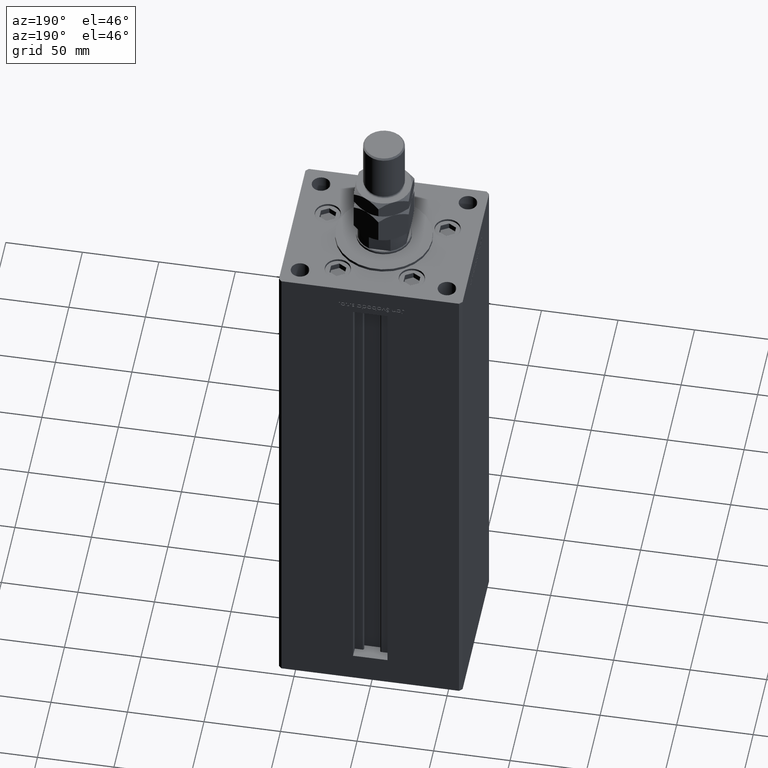
[diagram: clean part render]
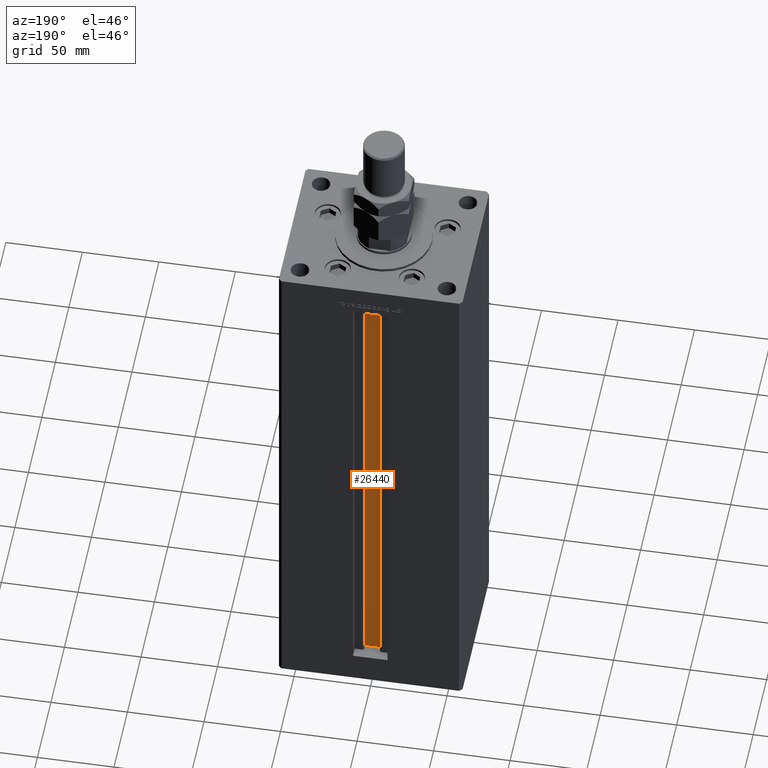
[diagram: same view with one face highlighted and labeled with its STEP entity id]
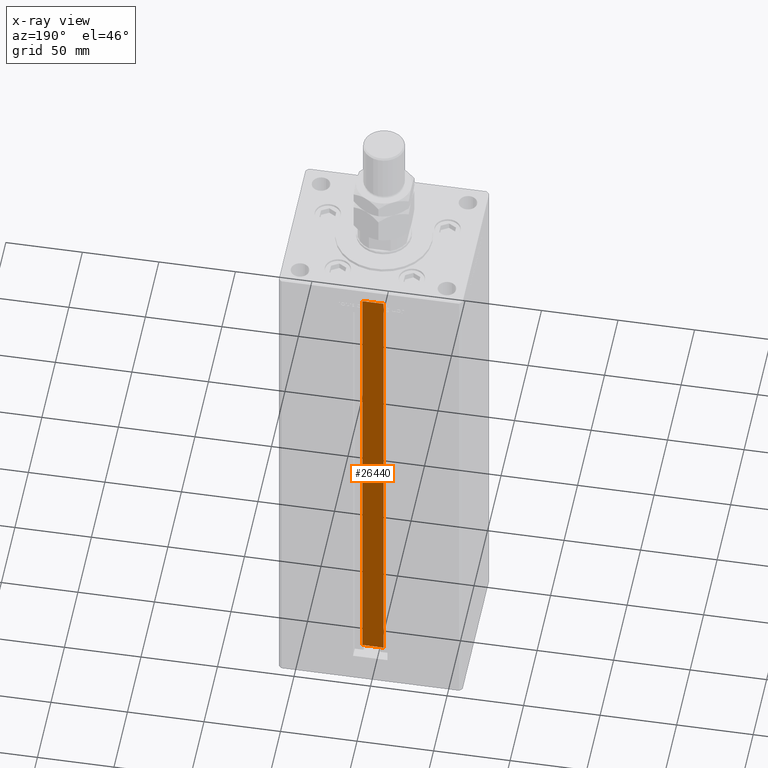
[diagram: x-ray of the same camera — body ghosted, the highlighted face saturated]
A machine part, auxiliary view. The second image highlights one B-rep face of the part: STEP entity #26440.
The next image is the same camera in x-ray: the body ghosted, the highlighted face saturated — about 0% of this face is hidden behind the body in this view.
In plain terms, the highlighted planar face has unit normal (0, -1, 0).
Its self-contained STEP definition (entity closure, byte-faithful):
#292 = EDGE_CURVE ( 'NONE', #21649, #23011, #18849, .T. ) ;
#591 = CARTESIAN_POINT ( 'NONE',  ( 6.876153656360466826, 40.49999999999987210, 0.000000000000000000 ) ) ;
#1289 = PLANE ( 'NONE',  #19312 ) ;
#2822 = LINE ( 'NONE', #27543, #35866 ) ;
#3124 = EDGE_CURVE ( 'NONE', #23973, #21649, #27388, .T. ) ;
#10469 = LINE ( 'NONE', #39779, #12246 ) ;
#10977 = CARTESIAN_POINT ( 'NONE',  ( 6.876153656360466826, 40.49999999999987210, 0.000000000000000000 ) ) ;
#12246 = VECTOR ( 'NONE', #44136, 1000.000000000000000 ) ;
#12831 = EDGE_CURVE ( 'NONE', #23011, #33125, #10469, .T. ) ;
#15234 = CARTESIAN_POINT ( 'NONE',  ( -6.876153656360466826, 40.49999999999987210, 318.5000000000000000 ) ) ;
#15333 = DIRECTION ( 'NONE',  ( -0.000000000000000000, -0.000000000000000000, 1.000000000000000000 ) ) ;
#16313 = VECTOR ( 'NONE', #43437, 1000.000000000000000 ) ;
#17874 = ORIENTED_EDGE ( 'NONE', *, *, #292, .F. ) ;
#18849 = LINE ( 'NONE', #10977, #36143 ) ;
#19312 = AXIS2_PLACEMENT_3D ( 'NONE', #46141, #34714, #33917 ) ;
#21649 = VERTEX_POINT ( 'NONE', #591 ) ;
#23011 = VERTEX_POINT ( 'NONE', #31298 ) ;
#23973 = VERTEX_POINT ( 'NONE', #24242 ) ;
#24242 = CARTESIAN_POINT ( 'NONE',  ( -6.876153656360466826, 40.49999999999987210, 0.000000000000000000 ) ) ;
#25489 = FACE_OUTER_BOUND ( 'NONE', #37144, .T. ) ;
#26440 = ADVANCED_FACE ( 'NONE', ( #25489 ), #1289, .F. ) ;
#27388 = LINE ( 'NONE', #43967, #16313 ) ;
#27543 = CARTESIAN_POINT ( 'NONE',  ( -6.876153656360466826, 40.49999999999987210, 0.000000000000000000 ) ) ;
#28713 = EDGE_CURVE ( 'NONE', #23973, #33125, #2822, .T. ) ;
#30115 = ORIENTED_EDGE ( 'NONE', *, *, #12831, .F. ) ;
#30715 = ORIENTED_EDGE ( 'NONE', *, *, #28713, .T. ) ;
#31298 = CARTESIAN_POINT ( 'NONE',  ( 6.876153656360466826, 40.49999999999987210, 318.5000000000000000 ) ) ;
#33125 = VERTEX_POINT ( 'NONE', #15234 ) ;
#33917 = DIRECTION ( 'NONE',  ( 0.000000000000000000, 0.000000000000000000, -1.000000000000000000 ) ) ;
#34714 = DIRECTION ( 'NONE',  ( 0.000000000000000000, -1.000000000000000000, -0.000000000000000000 ) ) ;
#35866 = VECTOR ( 'NONE', #52551, 1000.000000000000000 ) ;
#36143 = VECTOR ( 'NONE', #15333, 1000.000000000000000 ) ;
#37144 = EDGE_LOOP ( 'NONE', ( #17874, #44498, #30715, #30115 ) ) ;
#39779 = CARTESIAN_POINT ( 'NONE',  ( 0.000000000000000000, 40.49999999999987210, 318.5000000000000000 ) ) ;
#43437 = DIRECTION ( 'NONE',  ( 1.000000000000000000, -0.000000000000000000, -0.000000000000000000 ) ) ;
#43967 = CARTESIAN_POINT ( 'NONE',  ( 6.876153656360466826, 40.49999999999987210, 0.000000000000000000 ) ) ;
#44136 = DIRECTION ( 'NONE',  ( -1.000000000000000000, 0.000000000000000000, 0.000000000000000000 ) ) ;
#44498 = ORIENTED_EDGE ( 'NONE', *, *, #3124, .F. ) ;
#46141 = CARTESIAN_POINT ( 'NONE',  ( 6.876153656360466826, 40.49999999999987210, 0.000000000000000000 ) ) ;
#52551 = DIRECTION ( 'NONE',  ( -0.000000000000000000, -0.000000000000000000, 1.000000000000000000 ) ) ;